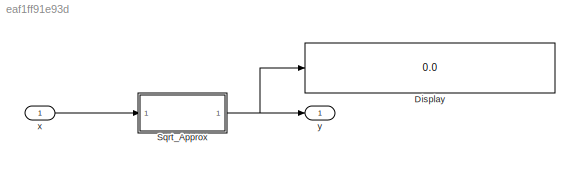
MODEL slx_eaf1ff91e93d
KIND model
CONFIG AbsTol = auto
CONFIG EnableMultiTasking = off
CONFIG FixedStep = auto
CONFIG MaxStep = auto
CONFIG MinStep = auto
CONFIG RelTol = 1e-3
CONFIG SampleTimeConstraint = Unconstrained
CONFIG Solver = VariableStepAuto
CONFIG SolverName = VariableStepAuto
CONFIG StartTime = 0.0
CONFIG StopTime = 10.0
BLOCK [Display] Display
  Decimation = 1
  Ports = [1]
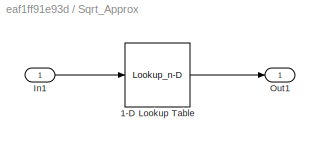
BLOCK [SubSystem] Sqrt_Approx
  AncestorBlock = sldvdemo_custom_blockreplib/Sqrt_Approx
  Ports = [1, 1]
  RequestExecContextInheritance = off
  Variant = off
BLOCK [Lookup_n-D] Sqrt_Approx/1-D Lookup Table
  BreakpointsForDimension1 = ydata
  ExtrapMethod = Clip
  LookupTableObject = ''
  NumberOfTableDimensions = 1
  OutDataTypeStr = Inherit: Inherit via back propagation
  Ports = [1, 1]
  RndMeth = Simplest
  Table = xdata
BLOCK [Inport] Sqrt_Approx/In1
  IconDisplay = Port number
BLOCK [Outport] Sqrt_Approx/Out1
  IconDisplay = Port number
BLOCK [Inport] x
  IconDisplay = Port number
BLOCK [Outport] y
  IconDisplay = Port number
NET Sqrt_Approx:1 -> Display:1, y:1
LINE x:1 -> Sqrt_Approx:1
note: NET lines group one-source signal fan-out (src -> all destinations, sorted); 1:1 wires keep LINE
